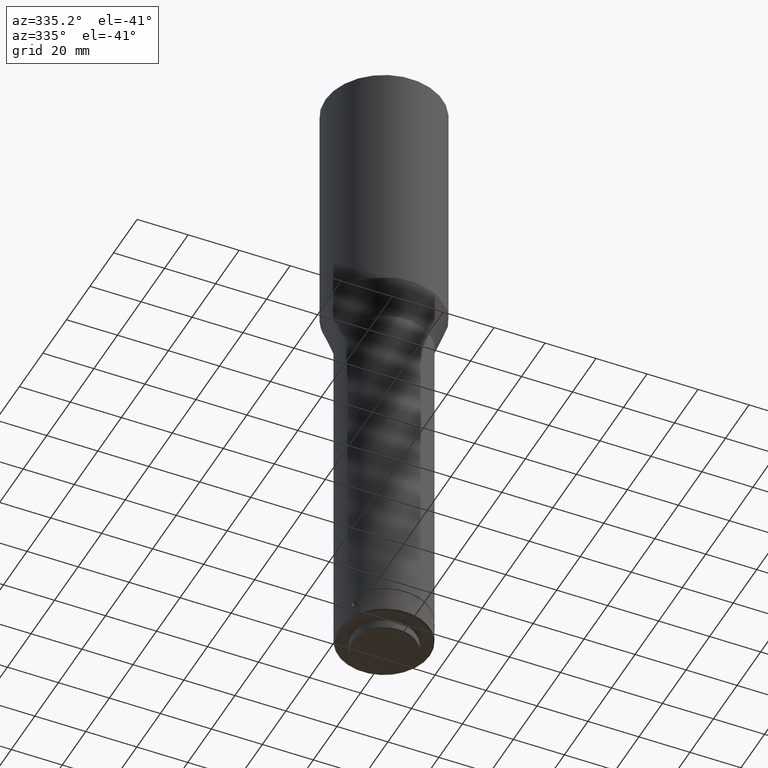
[diagram: clean part render]
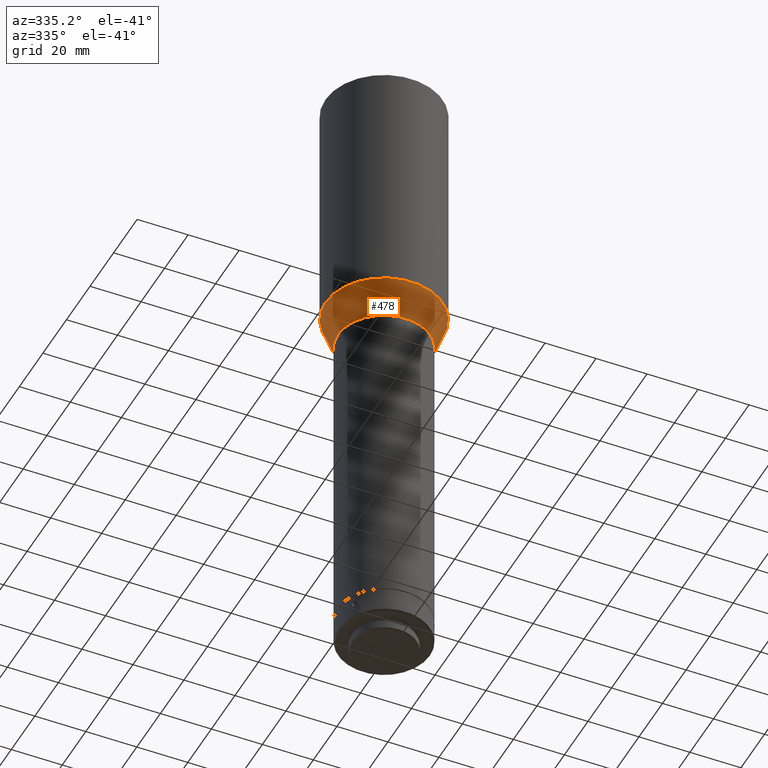
[diagram: same view with one face highlighted and labeled with its STEP entity id]
A machine part, auxiliary view. The second image highlights one B-rep face of the part: STEP entity #478.
In plain terms, the highlighted conical surface has half-angle 20 deg.
Its self-contained STEP definition (entity closure, byte-faithful):
#33 = DIRECTION ( 'NONE',  ( -2.775557561562890858E-16, 6.938893903907240704E-17, 1.000000000000000000 ) ) ;
#52 = CIRCLE ( 'NONE', #171, 22.93969262078589821 ) ;
#77 = FACE_OUTER_BOUND ( 'NONE', #197, .T. ) ;
#120 = CONICAL_SURFACE ( 'NONE', #875, 22.93969262078589821, 0.3490658503988669503 ) ;
#171 = AXIS2_PLACEMENT_3D ( 'NONE', #893, #287, #810 ) ;
#197 = EDGE_LOOP ( 'NONE', ( #700 ) ) ;
#287 = DIRECTION ( 'NONE',  ( 2.775557561562890858E-16, -6.938893903907240704E-17, -1.000000000000000000 ) ) ;
#321 = DIRECTION ( 'NONE',  ( 1.000000000000000000, -1.318389841742374131E-16, 0.000000000000000000 ) ) ;
#378 = ORIENTED_EDGE ( 'NONE', *, *, #680, .T. ) ;
#389 = CARTESIAN_POINT ( 'NONE',  ( 18.06030737921406271, 1.736033878240237315E-15, -516.3382589346559826 ) ) ;
#391 = AXIS2_PLACEMENT_3D ( 'NONE', #858, #33, #321 ) ;
#443 = DIRECTION ( 'NONE',  ( 1.000000000000000000, 0.000000000000000000, 0.000000000000000000 ) ) ;
#478 = ADVANCED_FACE ( 'NONE', ( #77, #651 ), #120, .T. ) ;
#584 = CARTESIAN_POINT ( 'NONE',  ( -1.387778780781445676E-14, 5.047314627319052587E-15, -502.9322581626173019 ) ) ;
#602 = VERTEX_POINT ( 'NONE', #389 ) ;
#651 = FACE_BOUND ( 'NONE', #850, .T. ) ;
#680 = EDGE_CURVE ( 'NONE', #602, #602, #949, .T. ) ;
#695 = VERTEX_POINT ( 'NONE', #824 ) ;
#700 = ORIENTED_EDGE ( 'NONE', *, *, #933, .T. ) ;
#810 = DIRECTION ( 'NONE',  ( 1.000000000000000000, -1.318389841742372899E-16, 0.000000000000000000 ) ) ;
#817 = DIRECTION ( 'NONE',  ( 0.000000000000000000, -0.000000000000000000, 1.000000000000000000 ) ) ;
#824 = CARTESIAN_POINT ( 'NONE',  ( 22.93969262078588400, 2.022968854925392319E-15, -502.9322581626173019 ) ) ;
#850 = EDGE_LOOP ( 'NONE', ( #378 ) ) ;
#858 = CARTESIAN_POINT ( 'NONE',  ( -9.595489176402836277E-15, 4.117086456990304601E-15, -516.3382589346559826 ) ) ;
#875 = AXIS2_PLACEMENT_3D ( 'NONE', #584, #817, #443 ) ;
#893 = CARTESIAN_POINT ( 'NONE',  ( -1.331640185771781718E-14, 5.047314627319052587E-15, -502.9322581626173019 ) ) ;
#933 = EDGE_CURVE ( 'NONE', #695, #695, #52, .T. ) ;
#949 = CIRCLE ( 'NONE', #391, 18.06030737921407336 ) ;